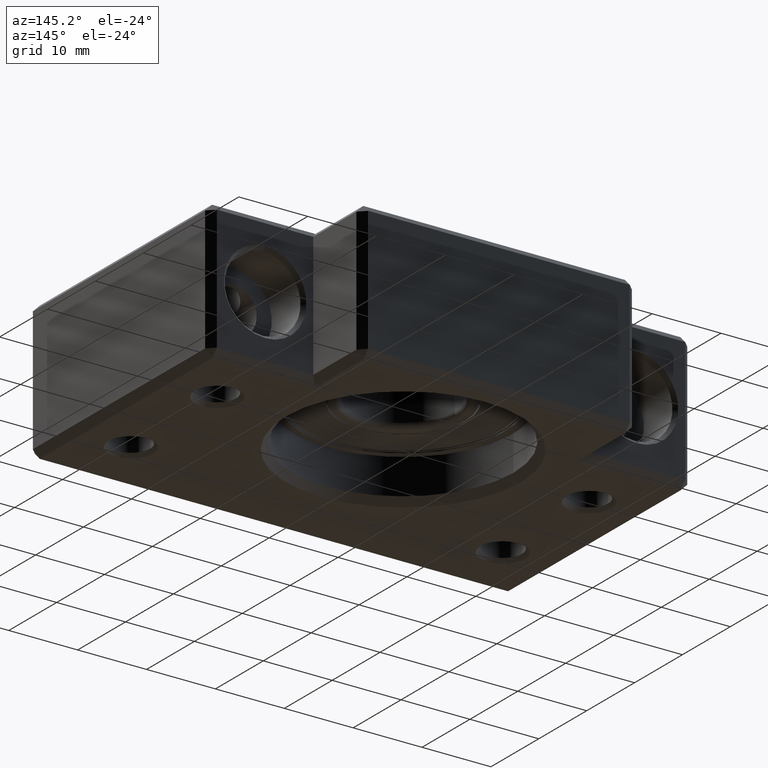
[diagram: clean part render]
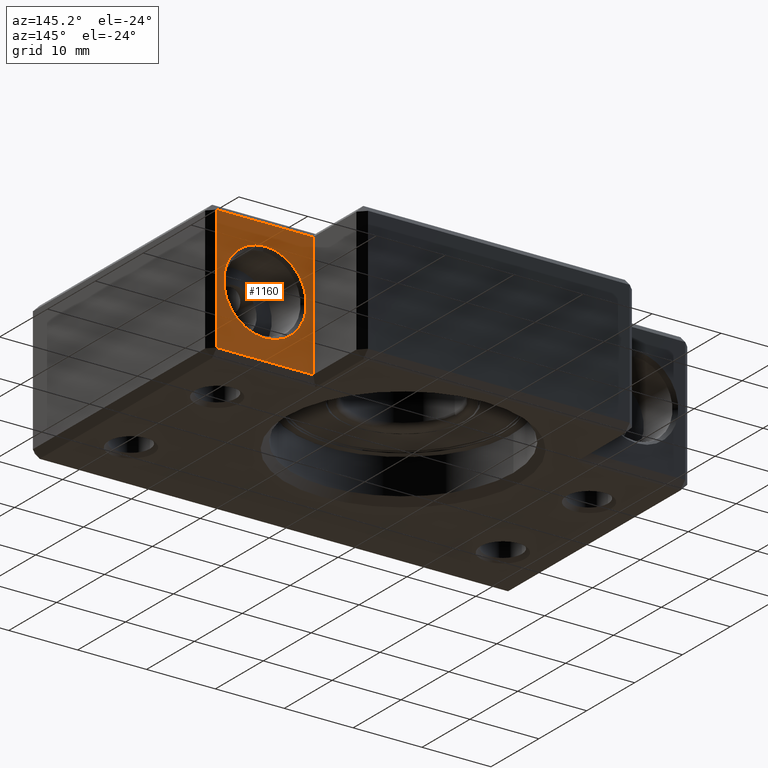
[diagram: same view with one face highlighted and labeled with its STEP entity id]
A machine part, auxiliary view. The second image highlights one B-rep face of the part: STEP entity #1160.
In plain terms, the highlighted planar face has unit normal (0, -1, 0).
Its self-contained STEP definition (entity closure, byte-faithful):
#788 = VERTEX_POINT ( 'NONE', #3364 ) ;
#824 = EDGE_CURVE ( 'NONE', #825, #788, #3417, .T. ) ;
#825 = VERTEX_POINT ( 'NONE', #3412 ) ;
#1160 = ADVANCED_FACE ( 'NONE', ( #4245, #4240 ), #4239, .F. ) ;
#1161 = EDGE_LOOP ( 'NONE', ( #1164, #1166 ) ) ;
#1164 = ORIENTED_EDGE ( 'NONE', *, *, #824, .T. ) ;
#1166 = ORIENTED_EDGE ( 'NONE', *, *, #1168, .T. ) ;
#1168 = EDGE_CURVE ( 'NONE', #788, #825, #4287, .T. ) ;
#1169 = EDGE_LOOP ( 'NONE', ( #1172, #1178, #1182, #1215 ) ) ;
#1172 = ORIENTED_EDGE ( 'NONE', *, *, #1173, .F. ) ;
#1173 = EDGE_CURVE ( 'NONE', #1175, #1176, #4282, .T. ) ;
#1175 = VERTEX_POINT ( 'NONE', #4278 ) ;
#1176 = VERTEX_POINT ( 'NONE', #4277 ) ;
#1178 = ORIENTED_EDGE ( 'NONE', *, *, #1179, .T. ) ;
#1179 = EDGE_CURVE ( 'NONE', #1175, #1180, #4276, .T. ) ;
#1180 = VERTEX_POINT ( 'NONE', #4272 ) ;
#1182 = ORIENTED_EDGE ( 'NONE', *, *, #1184, .T. ) ;
#1184 = EDGE_CURVE ( 'NONE', #1180, #1213, #4271, .T. ) ;
#1213 = VERTEX_POINT ( 'NONE', #4343 ) ;
#1215 = ORIENTED_EDGE ( 'NONE', *, *, #1217, .T. ) ;
#1217 = EDGE_CURVE ( 'NONE', #1213, #1176, #4337, .T. ) ;
#3364 = CARTESIAN_POINT ( 'NONE',  ( 27.00000000000000400, 38.00000000000000700, -6.000000000000040000 ) ) ;
#3412 = CARTESIAN_POINT ( 'NONE',  ( 27.00000000000000400, 38.00000000000000700, 6.000000000000025800 ) ) ;
#3413 = DIRECTION ( 'NONE',  ( 0.0000000000000000000, 0.0000000000000000000, -1.000000000000000000 ) ) ;
#3414 = DIRECTION ( 'NONE',  ( 0.0000000000000000000, -1.000000000000000000, 0.0000000000000000000 ) ) ;
#3415 = CARTESIAN_POINT ( 'NONE',  ( 27.00000000000000400, 38.00000000000000700, -6.613092715395707500E-015 ) ) ;
#3416 = AXIS2_PLACEMENT_3D ( 'NONE', #3415, #3414, #3413 ) ;
#3417 = CIRCLE ( 'NONE', #3416, 6.000000000000032900 ) ;
#4234 = DIRECTION ( 'NONE',  ( 0.0000000000000000000, -0.0000000000000000000, -1.000000000000000000 ) ) ;
#4235 = DIRECTION ( 'NONE',  ( 0.0000000000000000000, -1.000000000000000000, 0.0000000000000000000 ) ) ;
#4236 = AXIS2_PLACEMENT_3D ( 'NONE', #4238, #4235, #4234 ) ;
#4238 = CARTESIAN_POINT ( 'NONE',  ( 35.00000000000002100, 38.00000000000000700, 10.00000000000000000 ) ) ;
#4239 = PLANE ( 'NONE',  #4236 ) ;
#4240 = FACE_OUTER_BOUND ( 'NONE', #1169, .T. ) ;
#4245 = FACE_BOUND ( 'NONE', #1161, .T. ) ;
#4268 = DIRECTION ( 'NONE',  ( 0.0000000000000000000, 0.0000000000000000000, -1.000000000000000000 ) ) ;
#4269 = VECTOR ( 'NONE', #4268, 1000.000000000000000 ) ;
#4270 = CARTESIAN_POINT ( 'NONE',  ( 34.00000000000000700, 38.00000000000000700, 10.00000000000000000 ) ) ;
#4271 = LINE ( 'NONE', #4270, #4269 ) ;
#4272 = CARTESIAN_POINT ( 'NONE',  ( 34.00000000000000700, 38.00000000000000700, 9.000000000000000000 ) ) ;
#4273 = DIRECTION ( 'NONE',  ( 1.000000000000000000, 0.0000000000000000000, 0.0000000000000000000 ) ) ;
#4274 = VECTOR ( 'NONE', #4273, 1000.000000000000000 ) ;
#4275 = CARTESIAN_POINT ( 'NONE',  ( 35.00000000000002100, 38.00000000000000700, 9.000000000000000000 ) ) ;
#4276 = LINE ( 'NONE', #4275, #4274 ) ;
#4277 = CARTESIAN_POINT ( 'NONE',  ( 20.00000000000001800, 38.00000000000000700, -8.999999999999985800 ) ) ;
#4278 = CARTESIAN_POINT ( 'NONE',  ( 20.00000000000001800, 38.00000000000000700, 9.000000000000000000 ) ) ;
#4279 = DIRECTION ( 'NONE',  ( -0.0000000000000000000, -0.0000000000000000000, -1.000000000000000000 ) ) ;
#4280 = VECTOR ( 'NONE', #4279, 1000.000000000000000 ) ;
#4281 = CARTESIAN_POINT ( 'NONE',  ( 20.00000000000001800, 38.00000000000000700, 10.00000000000000000 ) ) ;
#4282 = LINE ( 'NONE', #4281, #4280 ) ;
#4283 = DIRECTION ( 'NONE',  ( 0.0000000000000000000, 0.0000000000000000000, -1.000000000000000000 ) ) ;
#4284 = DIRECTION ( 'NONE',  ( 0.0000000000000000000, -1.000000000000000000, 0.0000000000000000000 ) ) ;
#4285 = CARTESIAN_POINT ( 'NONE',  ( 27.00000000000000400, 38.00000000000000700, -6.613092715395707500E-015 ) ) ;
#4286 = AXIS2_PLACEMENT_3D ( 'NONE', #4285, #4284, #4283 ) ;
#4287 = CIRCLE ( 'NONE', #4286, 6.000000000000032900 ) ;
#4334 = DIRECTION ( 'NONE',  ( -1.000000000000000000, 0.0000000000000000000, 0.0000000000000000000 ) ) ;
#4335 = VECTOR ( 'NONE', #4334, 1000.000000000000000 ) ;
#4336 = CARTESIAN_POINT ( 'NONE',  ( 35.00000000000002100, 38.00000000000000700, -8.999999999999985800 ) ) ;
#4337 = LINE ( 'NONE', #4336, #4335 ) ;
#4343 = CARTESIAN_POINT ( 'NONE',  ( 34.00000000000000700, 38.00000000000000700, -8.999999999999985800 ) ) ;